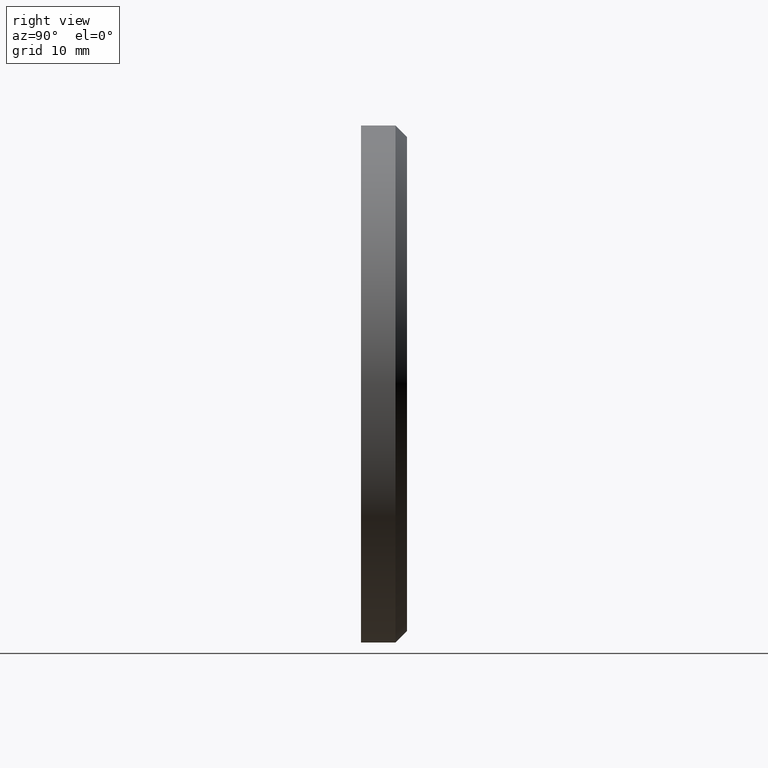
[diagram: clean part render]
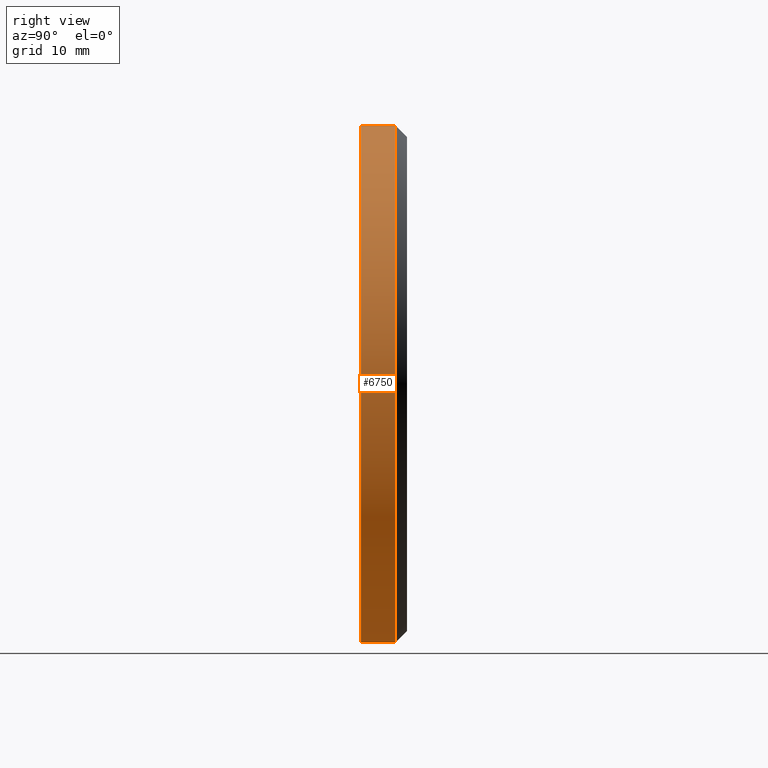
[diagram: same view with one face highlighted and labeled with its STEP entity id]
A machine part, right view. The second image highlights one B-rep face of the part: STEP entity #6750.
In plain terms, the highlighted cylindrical surface (partial cylindrical patch) has radius 22.5 mm, axis along (-0, -1, -0).
Its self-contained STEP definition (entity closure, byte-faithful):
#30 = VERTEX_POINT ( 'NONE', #8925 ) ;
#455 = CIRCLE ( 'NONE', #8377, 22.50000000000000355 ) ;
#805 = CARTESIAN_POINT ( 'NONE',  ( 2.755455298081545172E-15, -2.000000000000000000, 22.50000000000000355 ) ) ;
#1673 = CIRCLE ( 'NONE', #14239, 22.50000000000000355 ) ;
#2131 = EDGE_LOOP ( 'NONE', ( #9907, #12842, #8265, #12550 ) ) ;
#3665 = DIRECTION ( 'NONE',  ( 0.000000000000000000, 0.000000000000000000, -1.000000000000000000 ) ) ;
#3903 = AXIS2_PLACEMENT_3D ( 'NONE', #12495, #11469, #3665 ) ;
#4759 = CARTESIAN_POINT ( 'NONE',  ( 0.000000000000000000, 0.9999999999999922284, -22.50000000000000355 ) ) ;
#5024 = FACE_OUTER_BOUND ( 'NONE', #2131, .T. ) ;
#5088 = CARTESIAN_POINT ( 'NONE',  ( 0.000000000000000000, 2.000000000000000000, -22.50000000000000355 ) ) ;
#5379 = CARTESIAN_POINT ( 'NONE',  ( 0.000000000000000000, -2.000000000000000000, -22.50000000000000355 ) ) ;
#6494 = EDGE_CURVE ( 'NONE', #14089, #10049, #1673, .T. ) ;
#6750 = ADVANCED_FACE ( 'NONE', ( #5024 ), #9765, .T. ) ;
#6818 = VECTOR ( 'NONE', #14016, 1000.000000000000000 ) ;
#7143 = DIRECTION ( 'NONE',  ( 0.000000000000000000, 0.000000000000000000, 1.000000000000000000 ) ) ;
#7199 = DIRECTION ( 'NONE',  ( 0.000000000000000000, -1.000000000000000000, 0.000000000000000000 ) ) ;
#8265 = ORIENTED_EDGE ( 'NONE', *, *, #6494, .T. ) ;
#8329 = CARTESIAN_POINT ( 'NONE',  ( 2.755455298081545172E-15, 2.000000000000000000, 22.50000000000000355 ) ) ;
#8377 = AXIS2_PLACEMENT_3D ( 'NONE', #13931, #7199, #7143 ) ;
#8748 = LINE ( 'NONE', #8329, #6818 ) ;
#8924 = VECTOR ( 'NONE', #9652, 1000.000000000000000 ) ;
#8925 = CARTESIAN_POINT ( 'NONE',  ( 2.755455298081545172E-15, 0.9999999999999922284, 22.50000000000000355 ) ) ;
#9652 = DIRECTION ( 'NONE',  ( -0.000000000000000000, -1.000000000000000000, -0.000000000000000000 ) ) ;
#9765 = CYLINDRICAL_SURFACE ( 'NONE', #3903, 22.50000000000000355 ) ;
#9847 = CARTESIAN_POINT ( 'NONE',  ( 0.000000000000000000, -2.000000000000000000, 0.000000000000000000 ) ) ;
#9907 = ORIENTED_EDGE ( 'NONE', *, *, #14397, .T. ) ;
#10049 = VERTEX_POINT ( 'NONE', #5379 ) ;
#11314 = VERTEX_POINT ( 'NONE', #4759 ) ;
#11469 = DIRECTION ( 'NONE',  ( -0.000000000000000000, -1.000000000000000000, -0.000000000000000000 ) ) ;
#12495 = CARTESIAN_POINT ( 'NONE',  ( 0.000000000000000000, 2.000000000000000000, 0.000000000000000000 ) ) ;
#12550 = ORIENTED_EDGE ( 'NONE', *, *, #12845, .F. ) ;
#12842 = ORIENTED_EDGE ( 'NONE', *, *, #13112, .T. ) ;
#12845 = EDGE_CURVE ( 'NONE', #11314, #10049, #13306, .T. ) ;
#13112 = EDGE_CURVE ( 'NONE', #30, #14089, #8748, .T. ) ;
#13224 = DIRECTION ( 'NONE',  ( 0.000000000000000000, 0.000000000000000000, 1.000000000000000000 ) ) ;
#13306 = LINE ( 'NONE', #5088, #8924 ) ;
#13931 = CARTESIAN_POINT ( 'NONE',  ( 0.000000000000000000, 0.9999999999999922284, 0.000000000000000000 ) ) ;
#14016 = DIRECTION ( 'NONE',  ( -0.000000000000000000, -1.000000000000000000, -0.000000000000000000 ) ) ;
#14089 = VERTEX_POINT ( 'NONE', #805 ) ;
#14239 = AXIS2_PLACEMENT_3D ( 'NONE', #9847, #14418, #13224 ) ;
#14397 = EDGE_CURVE ( 'NONE', #11314, #30, #455, .T. ) ;
#14418 = DIRECTION ( 'NONE',  ( 0.000000000000000000, 1.000000000000000000, 0.000000000000000000 ) ) ;